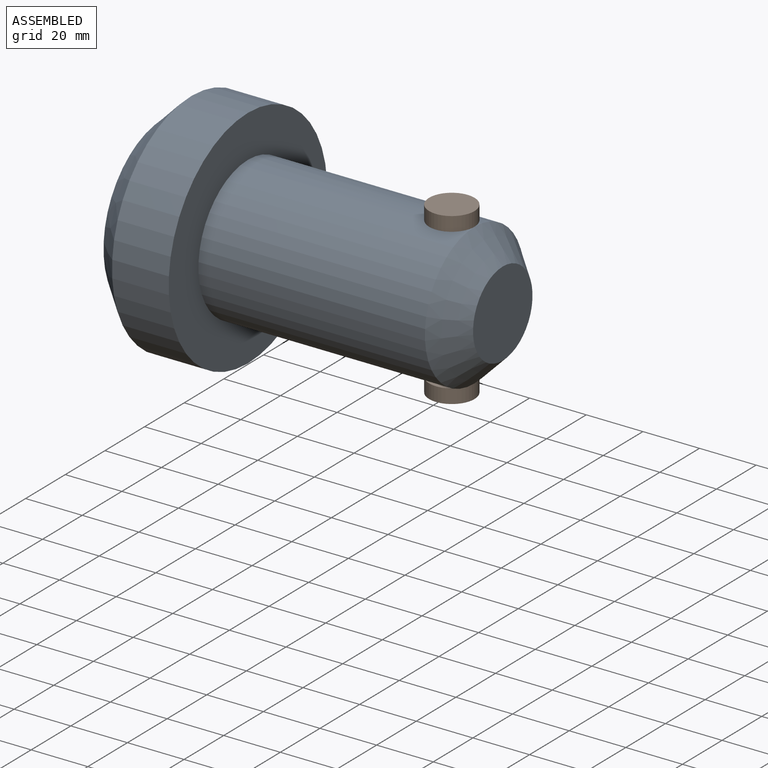
[diagram: assembled view]
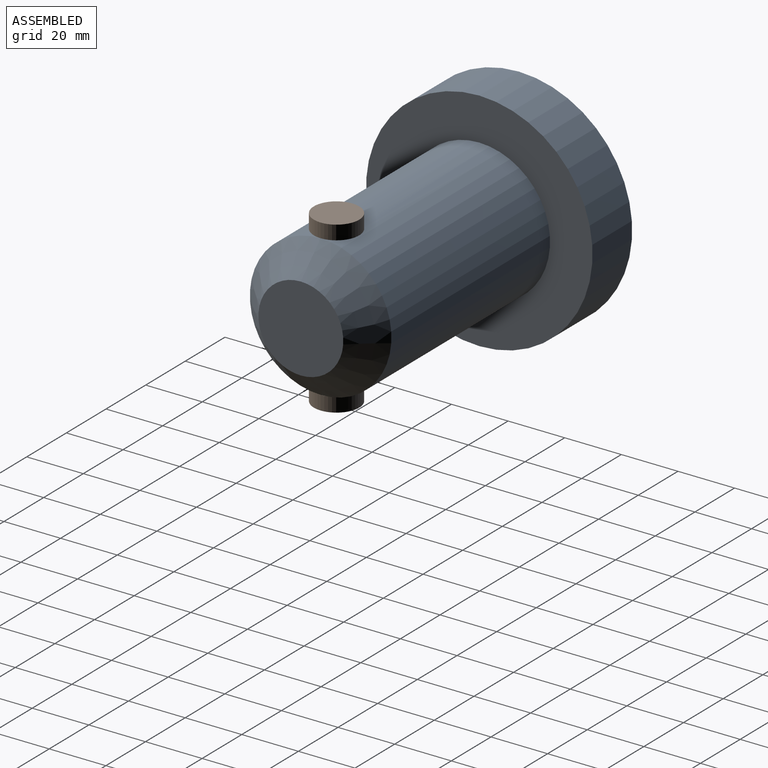
[diagram: assembled view, second angle]
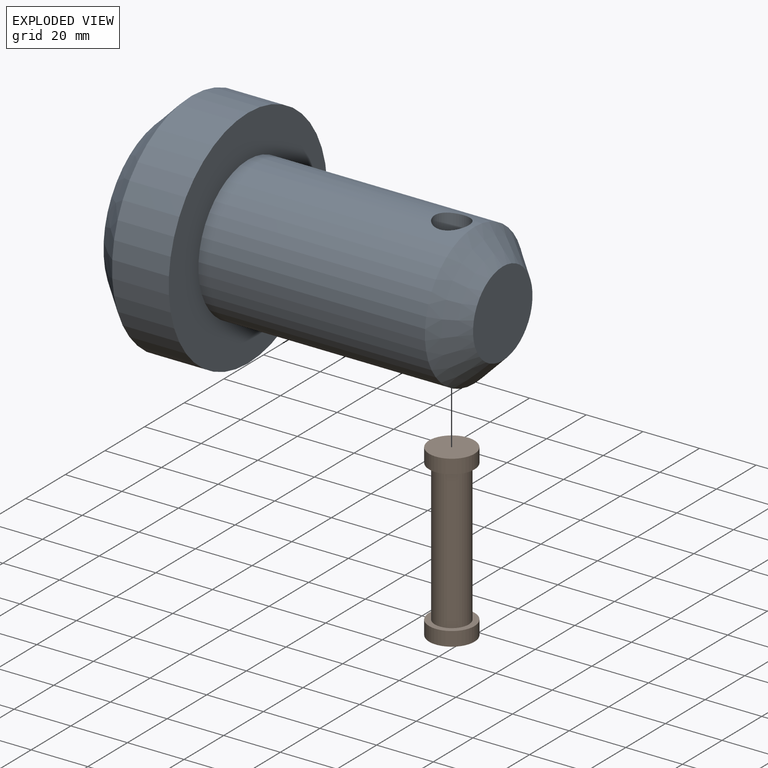
[diagram: exploded view]
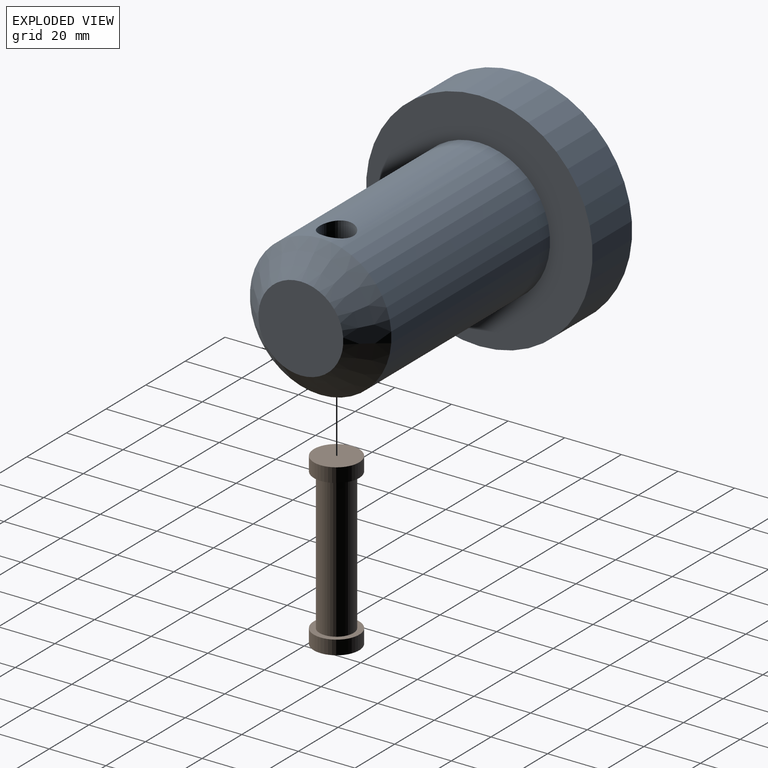
[diagram: exploded view, second angle]
ASSEMBLY  parts=2 mates=2
PART A: 8 faces, bbox 120x80x80 mm
  f0: cylinder r=25mm len=80mm, axis (-1,0,0), area 12338.9mm2, adj f3,f4,f7
  f1: plane 60x60mm, normal (-1,0,0), area 2827.4mm2, adj f6
  f2: plane 30x30mm, normal (1,0,0), area 706.9mm2, adj f3
  f3: cone r=25mm half-angle=45deg, axis (-1,0,0), area 1777.2mm2, adj f0,f2
  f4: plane 80x80mm, normal (1,0,0), area 3063.1mm2, adj f0,f5
  f5: cylinder r=40mm len=80mm, axis (-1,0,0), area 5026.5mm2, adj f4,f6
  f6: cone r=30mm half-angle=45deg, axis (1,0,0), area 3110mm2, adj f1,f5
  f7: cylinder r=6mm len=50mm, axis (0,0,1), area 1857.5mm2, adj f0
PART B: 7 faces, bbox 16x16x60 mm
  f0: plane 16x16mm, normal (0,0,-1), area 201.1mm2, adj f1
  f1: cylinder r=8mm len=16mm, axis (0,0,-1), area 251.3mm2, adj f0,f2
  f2: plane 16x16mm, normal (0,0,1), area 88mm2, adj f1,f3
  f3: cylinder r=6mm len=50mm, axis (0,0,-1), area 1885mm2, adj f2,f4
  f4: plane 16x16mm, normal (0,0,-1), area 88mm2, adj f3,f5
  f5: cylinder r=8mm len=16mm, axis (0,0,-1), area 251.3mm2, adj f4,f6
  f6: plane 16x16mm, normal (0,0,1), area 201.1mm2, adj f5
PLACE A t=(-144.33,9.83,-88.75)mm
PLACE B rot(axis=(0,0,1),0deg) t=(-192.33,9.83,-118.75)mm
MATE pin_slot B.f1 <-> A.f7  axis (0,0,-1) through (57.67,9.83,-88.75)mm
MATE cylindrical A.f7 <-> B.f1  axis (0,0,1) through (57.67,9.83,-63.44)mm
